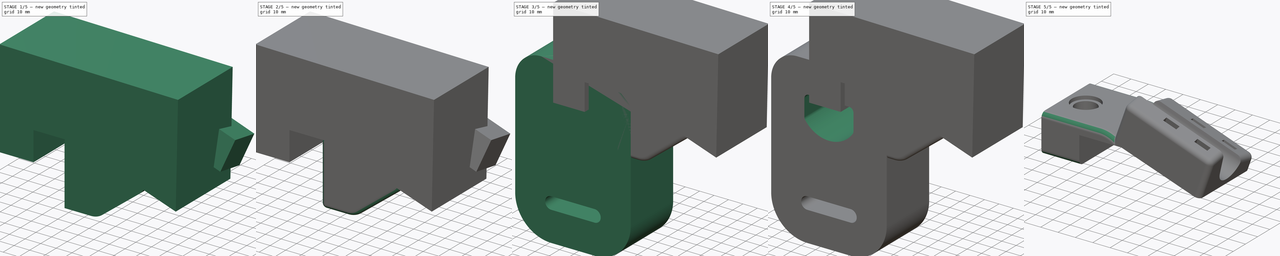
[diagram: build sequence overview — one tinted view per stage of 5, left to right]
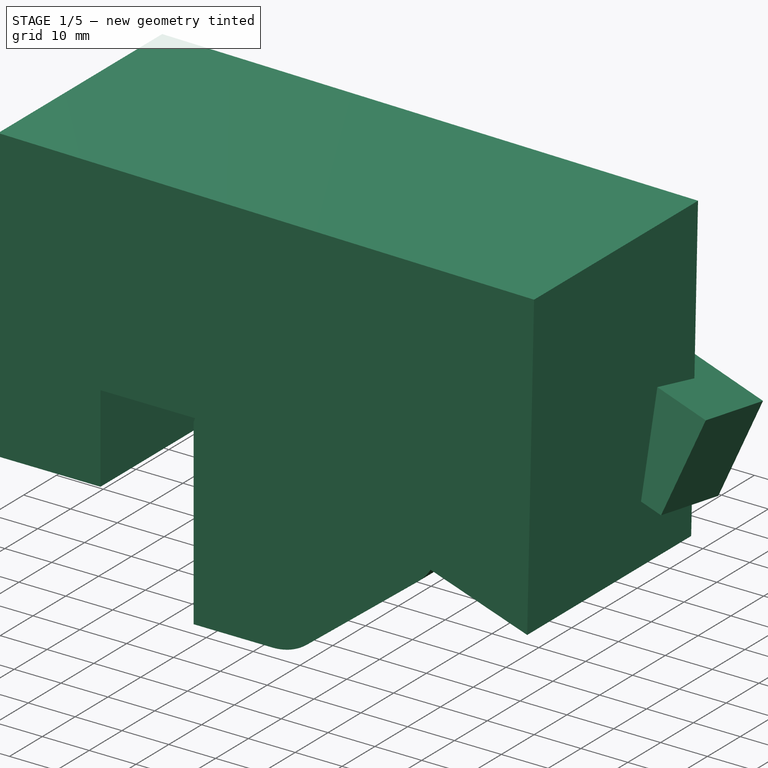
[diagram: stage 1 of 5 — iso view after this stage's code; geometry added in this stage tinted green]
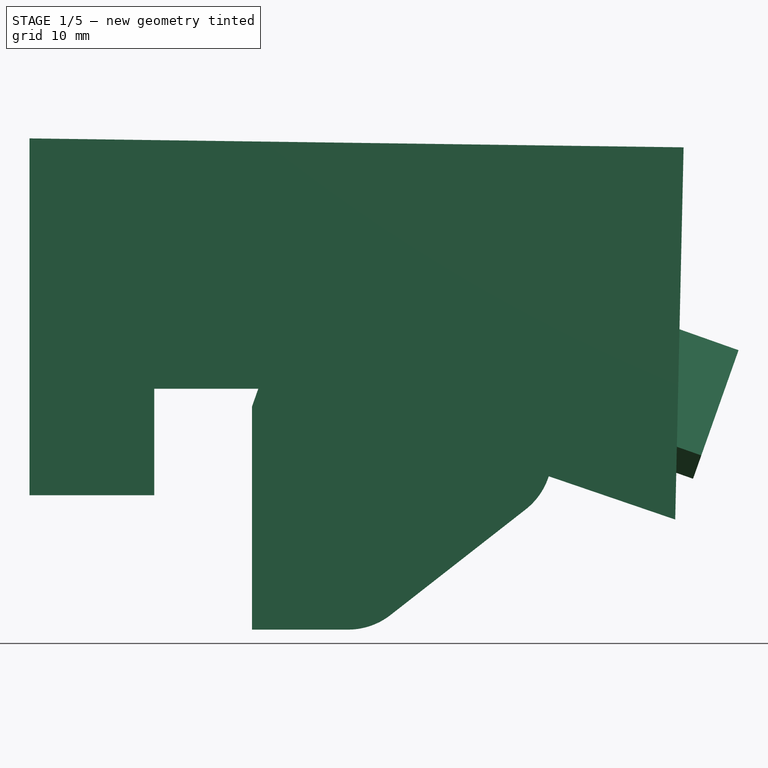
[diagram: stage 1 of 5 — front view after this stage's code; geometry added in this stage tinted green]
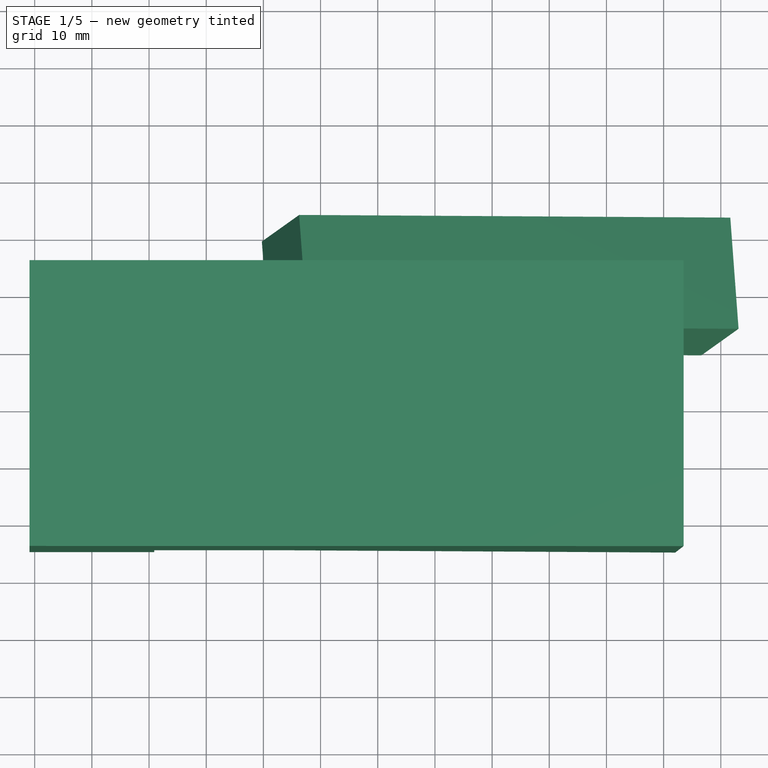
[diagram: stage 1 of 5 — top view after this stage's code; geometry added in this stage tinted green]
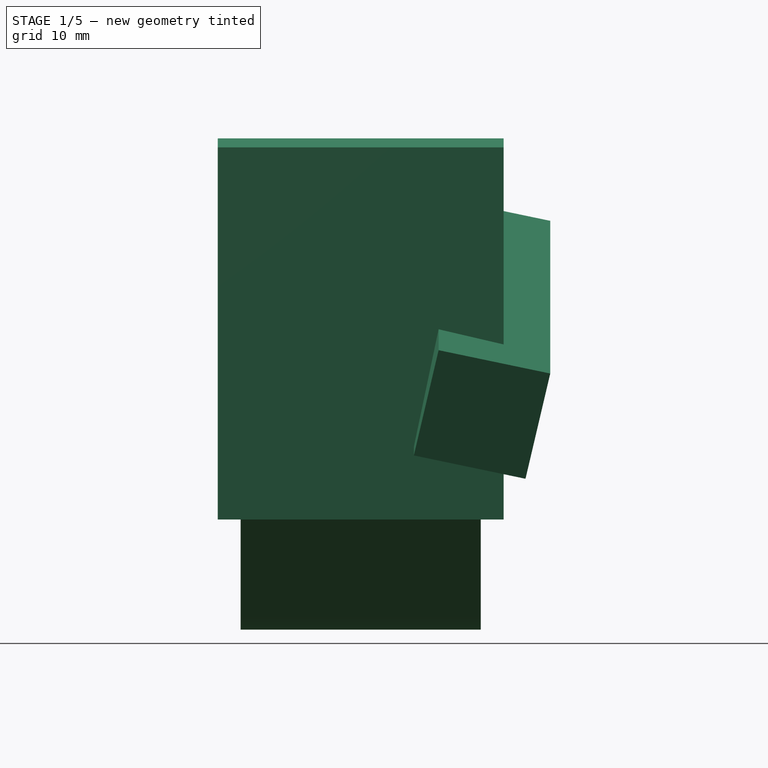
[diagram: stage 1 of 5 — right view after this stage's code; geometry added in this stage tinted green]
FCSTD DOCUMENT  (FreeCAD 0.21R30193 (Git))
Label: Siggi_mount
License: All rights reserved
LicenseURL: http://en.wikipedia.org/wiki/All_rights_reserved
objects: Sketcher::SketchObject×10, PartDesign::Pocket×5, PartDesign::Pad×4, PartDesign::Body×3, PartDesign::Mirrored×2, PartDesign::Fillet×2, Part::Box×2, Part::MultiFuse×2, PartDesign::Groove×1, PartDesign::PolarPattern×1, PartDesign::MultiTransform×1, App::Link×1, PartDesign::LinearPattern×1, Part::Cut×1, Part::MultiCommon×1
note: 48 computed .brp shape members not serialized (recipe doc carries the construction recipe); baked Part::Feature solids carry a one-line shape summary decoded from their .brp
EXTERNAL_REF file=../ello/beam_profile_V50mm.FCStd obj=Pad

FEATURE [Sketcher::SketchObject] Sketch006
  FullyConstrained = true
  MapMode = 5
  Placement = pos=(0,0,0) rot=(1,0,0;1.5708rad)
  Support = -> [XZ_Plane001]
  sketch-geometry (10):
    g0: LineSegment StartX=28 StartY=81 StartZ=0 EndX=38.2694 EndY=110 EndZ=0
    g1: LineSegment StartX=38.2694 StartY=110 StartZ=0 EndX=88.2294 EndY=92.3082 EndZ=0
    g2: LineSegment StartX=88.2294 StartY=92.3082 StartZ=0 EndX=79.7858 EndY=68.4642 EndZ=0
    g3: LineSegment StartX=75.862 StartY=63.0137 StartZ=0 EndX=52.2217 EndY=44.5439 EndZ=0
    g4: LineSegment StartX=44.8338 StartY=42 StartZ=0 EndX=28 EndY=42 EndZ=0
    g5: LineSegment StartX=28 StartY=42 StartZ=0 EndX=28 EndY=81 EndZ=0
    g6: ArcOfCircle CenterX=68.4741 CenterY=72.4698 CenterZ=0 NormalX=0 NormalY=0 NormalZ=1 AngleXU=0 Radius=12 StartAngle=5.37561 EndAngle=5.94285
    g7: GeomPoint X=78.6183 Y=65.1671 Z=0
    g8: ArcOfCircle CenterX=44.8338 CenterY=54 CenterZ=0 NormalX=0 NormalY=0 NormalZ=1 AngleXU=0 Radius=12 StartAngle=4.71239 EndAngle=5.37561
    g9: GeomPoint X=48.9657 Y=42 Z=0
  constraints (26):
    c: Coincident(g0,g1)
    c: Coincident(g1,g2)
    c: Horizontal(g4)
    c: Coincident(g4,g5)
    c: Vertical(g5)
    c: Coincident(g5,g0)
    c: DistanceY(g0) = 110
    c: Distance(g1) = 53
    c: Parallel(g0,g2)
    c: Perpendicular(g0,g1)
    c: Angle(g1,g-1) = 0.340339
    c: PointOnObject(g7,g2)
    c: PointOnObject(g7,g3)
    c: Tangent(g2,g6) = 1.5708
    c: Tangent(g3,g6) = 1.5708
    c: PointOnObject(g9,g3)
    c: PointOnObject(g9,g4)
    c: Tangent(g3,g8) = 1.5708
    c: Tangent(g4,g8) = 1.5708
    c: Equal(g6,g8)
    c: Radius(g8) = 12
    c: Angle(g3,g-2) = 0.907571
    c: DistanceX(g4) = 28
    c: DistanceY(g4) = 42
    c: Distance(g3) = 30
    c: DistanceY(g5,g5) = 39
FEATURE [PartDesign::Pad] Pad002  label="Side-shape"
  Direction = (0,-1,-2e-16)
  Length = 42
  Length2 = 10
  Midplane = true
  Placement = pos=(0,0,0) rot=(1,0,0;1.5708rad)
  Profile = -> Sketch006
  ReferenceAxis = -> Sketch006 [N_Axis]
  Type = 0
FEATURE [Sketcher::SketchObject] Sketch007
  AttachmentOffset = pos=(0,0,24) rot=(1,0,0;0.340339rad)
  FullyConstrained = false
  MapMode = 5
  Placement = pos=(24,-5.3e-15,5.3e-15) rot=(0.632523,0.632523,0.447023;2.30084rad)
  Support = -> [YZ_Plane001]
  sketch-geometry (9):
    g0: LineSegment StartX=-18.5528 StartY=128.306 StartZ=0 EndX=-13.4441 EndY=83.4682 EndZ=0
    g1: LineSegment StartX=13.4441 StartY=83.4682 StartZ=0 EndX=18.5528 EndY=128.306 EndZ=0
    g2: LineSegment StartX=18.5528 StartY=128.306 StartZ=0 EndX=16.0528 EndY=128.306 EndZ=0
    g3: LineSegment StartX=16.0528 StartY=128.306 StartZ=0 EndX=11.4261 EndY=87.6982 EndZ=0
    g4: LineSegment StartX=-11.4261 StartY=87.6982 StartZ=0 EndX=-16.0528 EndY=128.306 EndZ=0
    g5: LineSegment StartX=-16.0528 StartY=128.306 StartZ=0 EndX=-18.5528 EndY=128.306 EndZ=0
    g6: ArcOfCircle CenterX=-5.72e-14 CenterY=89 CenterZ=0 NormalX=0 NormalY=0 NormalZ=1 AngleXU=0 Radius=11.5 StartAngle=3.25504 EndAngle=6.16974
    g7: ArcOfCircle CenterX=0 CenterY=85 CenterZ=0 NormalX=0 NormalY=0 NormalZ=1 AngleXU=0 Radius=13.5311 StartAngle=3.25504 EndAngle=6.16974
    g8: LineSegment StartX=12.1778 StartY=94.296 StartZ=0 EndX=9.19709 EndY=94.6356 EndZ=0
  constraints (23):
    c: Coincident(g1,g2)
    c: Coincident(g2,g3)
    c: Coincident(g4,g5)
    c: Coincident(g5,g0)
    c: Horizontal(g5)
    c: Symmetric(g0,g1,g-2)
    c: Horizontal(g2)
    c: Equal(g2,g5)
    c: DistanceX(g5,g5) = 2.5
    c: DistanceY(g7,g6) = 4
    c: Tangent(g6,g4) = 1.5708
    c: Tangent(g6,g3) = 1.5708
    c: Tangent(g7,g1) = -1.5708
    c: Tangent(g7,g0) = -1.5708
    c: DistanceY(g7) = 85
    c: Parallel(g3,g1)
    c: Parallel(g4,g0)
    c: Radius(g6) = 11.5
    c: Angle(g3,g4) = 0.226893
    c: PointOnObject(g7,g-2)
    c: PointOnObject(g8,g3)
    c: Perpendicular(g3,g8)
    c: Distance(g8) = 3
FEATURE [Part::Box] Box001  label="side-protrusion"
  AttacherType = Attacher::AttachEngine3D
  Height = 20
  Length = 80
  Placement = pos=(31.1758,9.29767,99.1698) rot=(-0.535193,0.839709,0.091963;0.403691rad)
  Width = 20
FEATURE [Sketcher::SketchObject] Sketch008
  AttachmentOffset = pos=(0,0,0) rot=(1,0,0;0.340339rad)
  FullyConstrained = true
  MapMode = 5
  Placement = pos=(0,0,0) rot=(0.632523,0.632523,0.447023;2.30084rad)
  Support = -> [YZ_Plane001]
  sketch-geometry (6):
    g0: LineSegment StartX=0 StartY=119 StartZ=0 EndX=-25 EndY=112.301 EndZ=0
    g1: LineSegment StartX=-25 StartY=112.301 StartZ=0 EndX=-25 EndY=149.301 EndZ=0
    g2: LineSegment StartX=-25 StartY=149.301 StartZ=0 EndX=25 EndY=149.301 EndZ=0
    g3: LineSegment StartX=25 StartY=149.301 StartZ=0 EndX=25 EndY=99.3013 EndZ=0
    g4: LineSegment StartX=25 StartY=99.3013 StartZ=0 EndX=0 EndY=106 EndZ=0
    g5: LineSegment StartX=0 StartY=106 StartZ=0 EndX=0 EndY=119 EndZ=0
  constraints (17):
    c: Coincident(g0,g1)
    c: Vertical(g1)
    c: Coincident(g1,g2)
    c: Coincident(g2,g3)
    c: Vertical(g3)
    c: Coincident(g3,g4)
    c: Coincident(g4,g5)
    c: Coincident(g5,g0)
    c: Vertical(g5)
    c: Angle(g4,g2) = 0.261799
    c: Angle(g2,g0) = 0.261799
    c: Symmetric(g1,g2,g-2)
    c: DistanceX(g2,g2) = 50
    c: PointOnObject(g4,g-2)
    c: DistanceY(g5,g5) = 13
    c: Equal(g2,g3)
    c: DistanceY(g4) = 106
FEATURE [PartDesign::Pocket] Pocket004  label="Roof"
  BaseFeature = -> Pad002
  Direction = (-0.942641,3e-16,0.333807)
  Length = 5
  Length2 = 5
  Midplane = true
  Placement = pos=(0,0,0) rot=(1,0,0;1.5708rad)
  Profile = -> Sketch008
  ReferenceAxis = -> Sketch008 [N_Axis]
  Type = 1
FEATURE [Sketcher::SketchObject] Sketch009
  FullyConstrained = false
  MapMode = 5
  Placement = pos=(0,0,0) rot=(1,0,0;1.5708rad)
  Support = -> [XZ_Plane002]
  sketch-geometry (7):
    g0: LineSegment StartX=-10.9198 StartY=127.912 StartZ=0 EndX=-10.9198 EndY=65.4889 EndZ=0
    g1: LineSegment StartX=-10.9198 StartY=65.4889 StartZ=0 EndX=10.9198 EndY=65.4889 EndZ=0
    g2: LineSegment StartX=10.9198 StartY=65.4889 StartZ=0 EndX=10.9198 EndY=84.1237 EndZ=0
    g3: LineSegment StartX=10.9198 StartY=84.1237 StartZ=0 EndX=35.1702 EndY=84.1237 EndZ=0
    g4: LineSegment StartX=35.1702 StartY=84.1237 StartZ=0 EndX=102.025 EndY=61.2523 EndZ=0
    g5: LineSegment StartX=102.025 StartY=61.2523 StartZ=0 EndX=103.491 EndY=126.348 EndZ=0
    g6: LineSegment StartX=-10.9198 StartY=127.912 StartZ=0 EndX=103.491 EndY=126.348 EndZ=0
  constraints (11):
    c: Vertical(g0)
    c: Coincident(g0,g1)
    c: Coincident(g1,g2)
    c: Vertical(g2)
    c: Coincident(g2,g3)
    c: Horizontal(g3)
    c: Coincident(g3,g4)
    c: Coincident(g4,g5)
    c: Coincident(g6,g0)
    c: Coincident(g6,g5)
    c: Symmetric(g0,g1,g-2)
FEATURE [PartDesign::Pad] Pad003
  Direction = (0,-1,2e-16)
  Length = 50
  Length2 = 10
  Midplane = true
  Placement = pos=(0,0,0) rot=(1,0,0;1.5708rad)
  Profile = -> Sketch009
  ReferenceAxis = -> Sketch009 [N_Axis]
  Type = 0
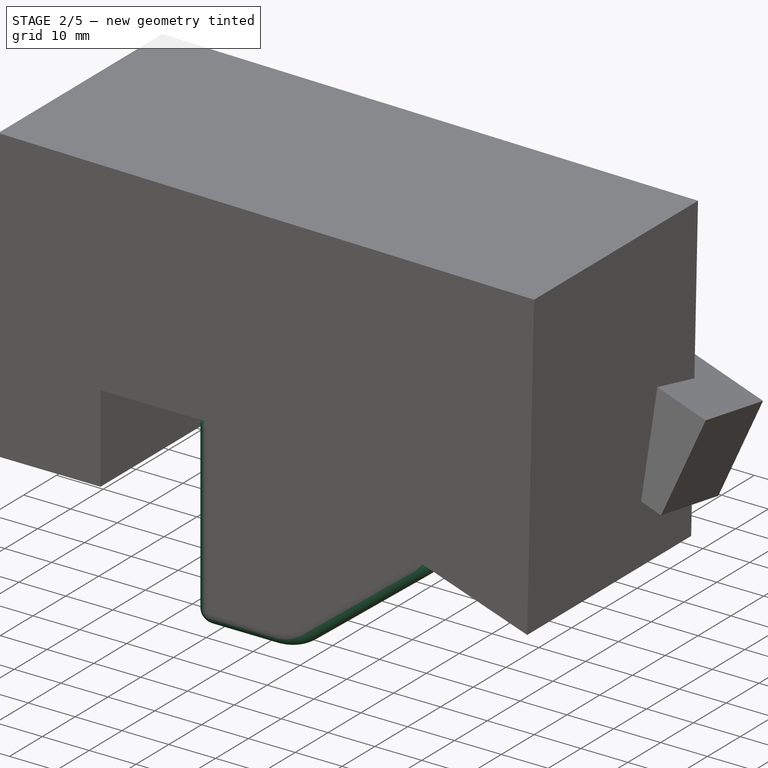
[diagram: stage 2 of 5 — iso view after this stage's code; geometry added in this stage tinted green]
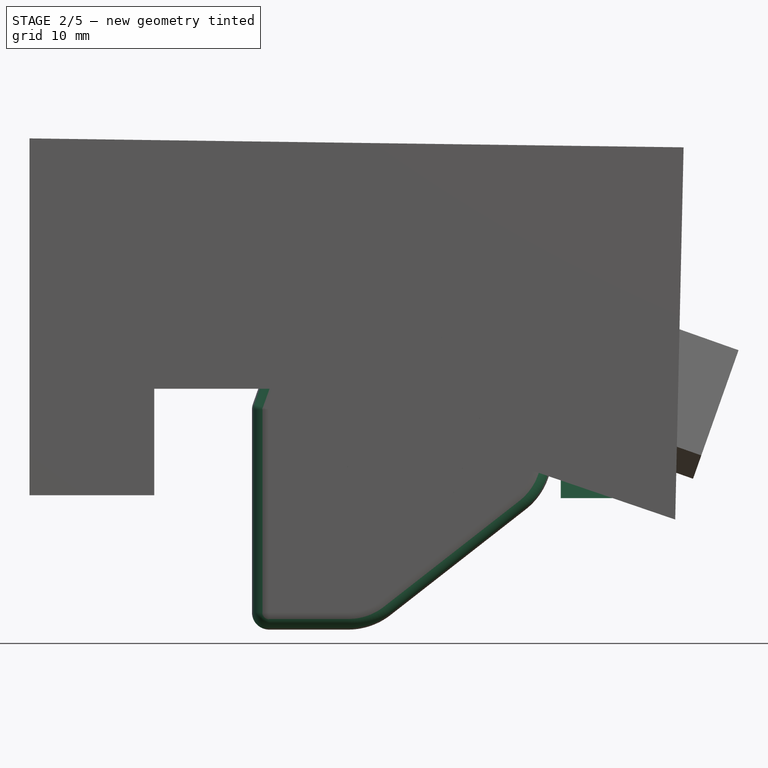
[diagram: stage 2 of 5 — front view after this stage's code; geometry added in this stage tinted green]
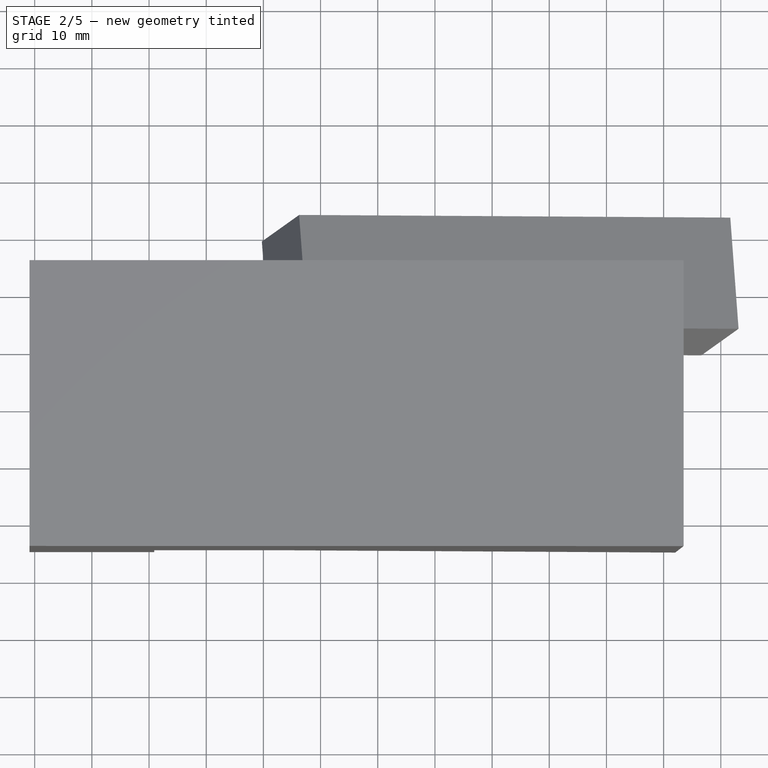
[diagram: stage 2 of 5 — top view after this stage's code; geometry added in this stage tinted green]
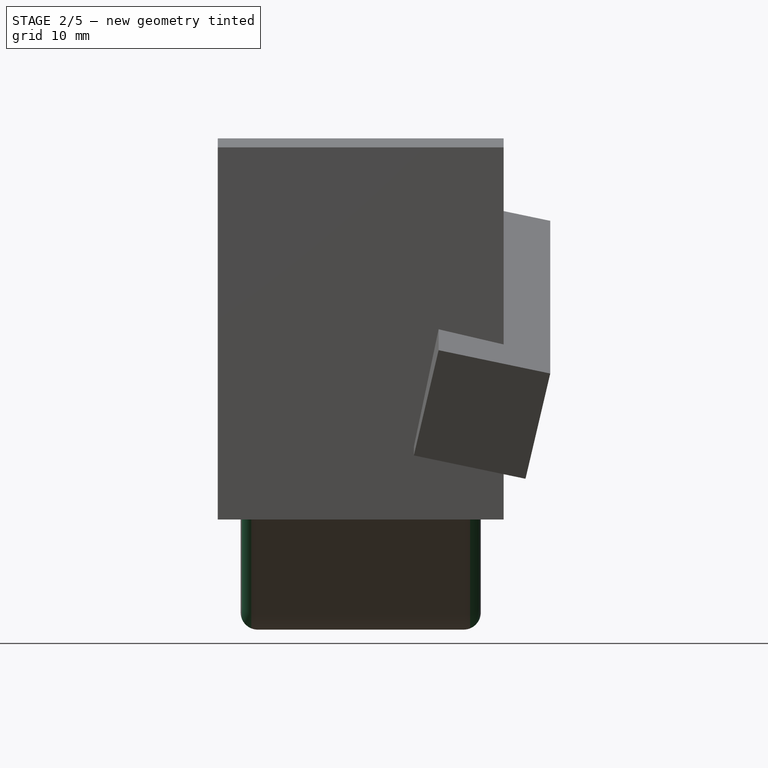
[diagram: stage 2 of 5 — right view after this stage's code; geometry added in this stage tinted green]
FEATURE [PartDesign::Body] Body  label="Block"
  Group = -> [Sketch,Pad,Sketch001,Sketch002,Groove,Pocket001,PolarPattern,Sketch003,Pocket002,MultiTransform,Mirrored,Mirrored001,Sketch004,Pocket003,Sketch005,Pad001,Fillet]
  Origin = -> Origin
  Tip = -> Fillet
FEATURE [App::Link] Link  label="Beam-Profile"
  LinkPlacement = pos=(30,0,90) rot=(0.166953,0.166953,0.971727;1.59947rad)
  LinkTransform = true
  LinkedObject = -> <external ../ello/beam_profile_V50mm.FCStd>#Pad
  Placement = pos=(30,0,90) rot=(0.166953,0.166953,0.971727;1.59947rad)
FEATURE [Part::Box] Box  label="bottom-weld"
  AttacherType = Attacher::AttachEngine3D
  Height = 10
  Length = 10
  Placement = pos=(82,5,75) rot=(1,0,0;3.14159rad)
  Width = 10
FEATURE [PartDesign::Fillet] Fillet001
  Base = -> Pocket004
  BaseFeature = -> Pocket004
  Placement = pos=(0,0,0) rot=(1,0,0;1.5708rad)
  Radius = 3
  SupportTransform = false
  UseAllEdges = true
FEATURE [PartDesign::Pocket] Pocket  label="Zip-tie-pocket"
  BaseFeature = -> Fillet001
  Direction = (-0.942641,3e-16,0.333807)
  Length = 8
  Length2 = 5
  Midplane = true
  Placement = pos=(0,0,0) rot=(1,0,0;1.5708rad)
  Profile = -> Sketch007
  ReferenceAxis = -> Sketch007 [N_Axis]
  Type = 0
FEATURE [PartDesign::LinearPattern] LinearPattern
  BaseFeature = -> Pocket
  Direction = -> Sketch007 [N_Axis]
  Length = 19
  Occurrences = 2
  Originals = -> [Pocket]
  Placement = pos=(0,0,0) rot=(1,0,0;1.5708rad)
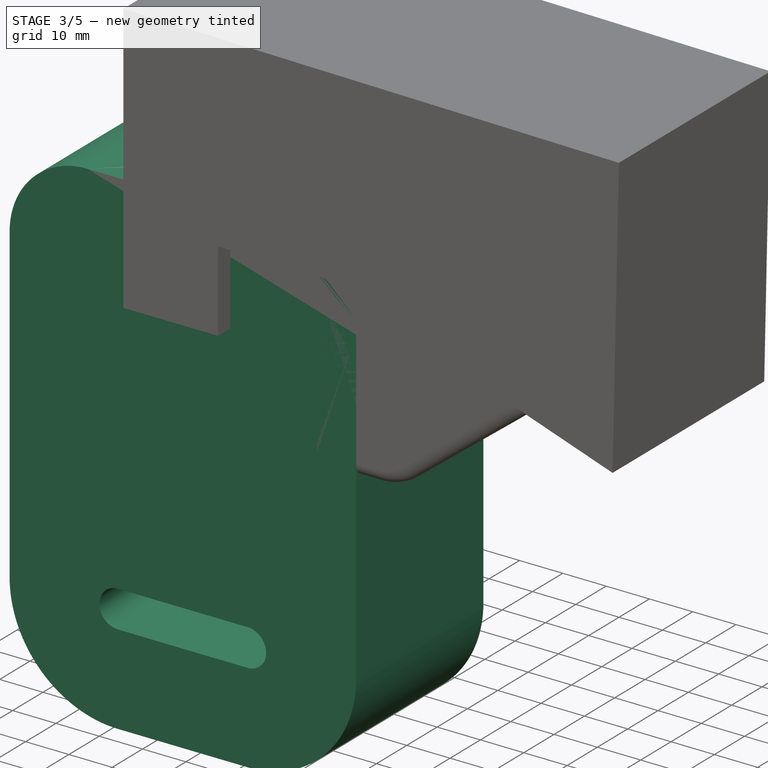
[diagram: stage 3 of 5 — iso view after this stage's code; geometry added in this stage tinted green]
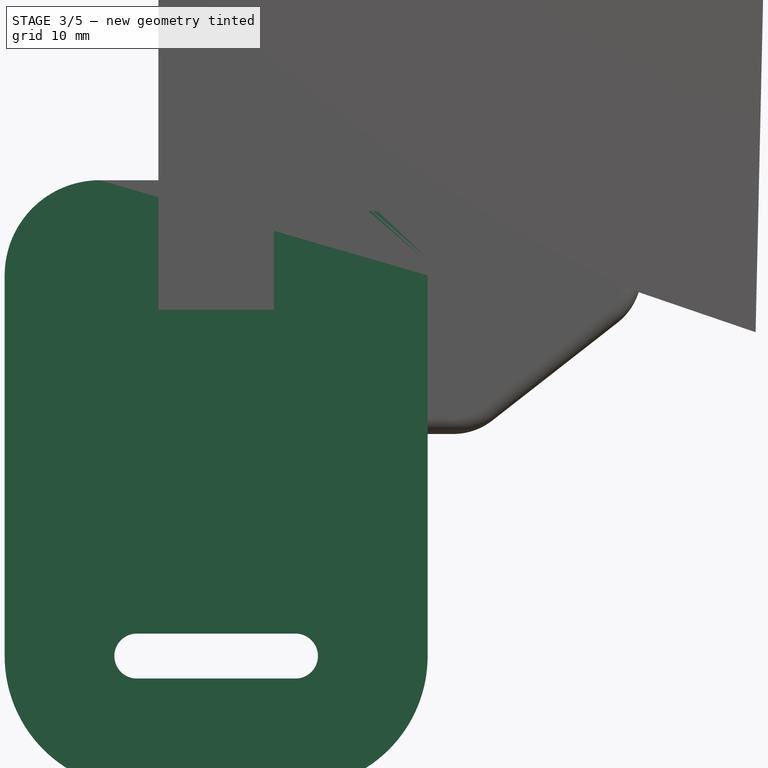
[diagram: stage 3 of 5 — front view after this stage's code; geometry added in this stage tinted green]
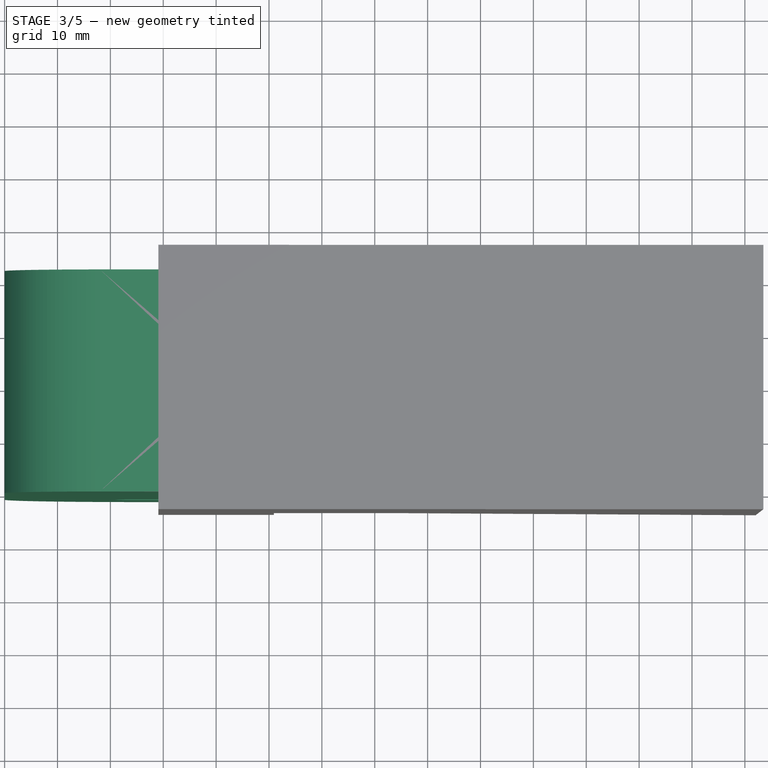
[diagram: stage 3 of 5 — top view after this stage's code; geometry added in this stage tinted green]
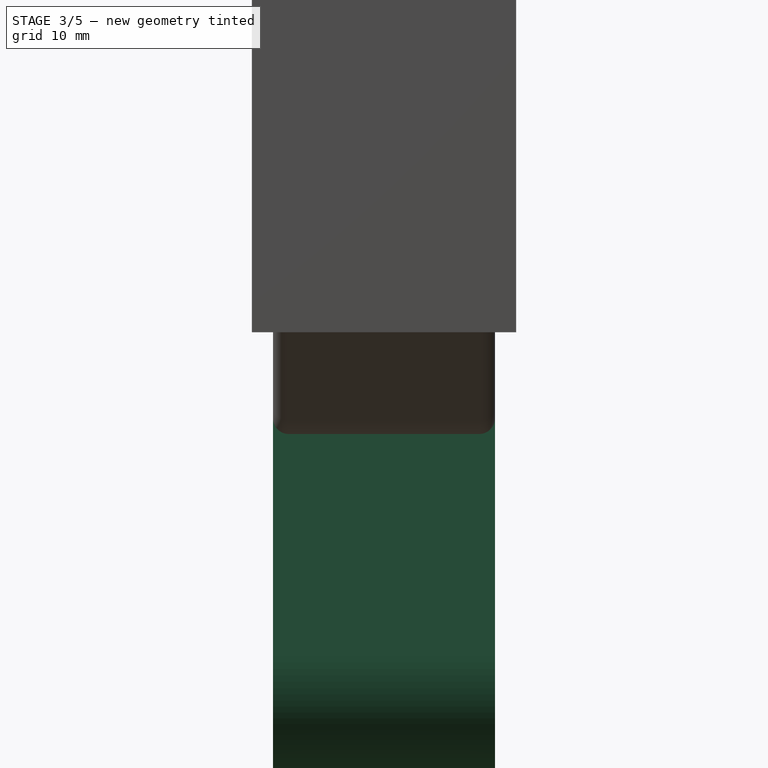
[diagram: stage 3 of 5 — right view after this stage's code; geometry added in this stage tinted green]
FEATURE [Sketcher::SketchObject] Sketch  label="shape"
  FullyConstrained = true
  MapMode = 5
  Placement = pos=(0,0,0) rot=(1,0,0;1.5708rad)
  Support = -> [XZ_Plane]
  expr: Constraints[31] = 2 + 9 + 12 + 2
  sketch-geometry (23):
    g0: ArcOfCircle CenterX=-15 CenterY=0 CenterZ=0 NormalX=0 NormalY=0 NormalZ=1 AngleXU=0 Radius=4.25 StartAngle=1.5708 EndAngle=4.71239
    g1: ArcOfCircle CenterX=15 CenterY=0 CenterZ=0 NormalX=0 NormalY=0 NormalZ=1 AngleXU=0 Radius=4.25 StartAngle=4.71239 EndAngle=7.85398
    g2: LineSegment StartX=-15 StartY=-4.25 StartZ=0 EndX=15 EndY=-4.25 EndZ=0
    g3: LineSegment StartX=15 StartY=4.25 StartZ=0 EndX=-15 EndY=4.25 EndZ=0
    g4: LineSegment StartX=-14 StartY=68 StartZ=0 EndX=14 EndY=68 EndZ=0
    g5: LineSegment StartX=17 StartY=65 StartZ=0 EndX=17 EndY=53.3563 EndZ=0
    g6: LineSegment StartX=-17 StartY=53.3563 StartZ=0 EndX=-17 EndY=65 EndZ=0
    g7: ArcOfCircle CenterX=-14 CenterY=53.3563 CenterZ=0 NormalX=0 NormalY=0 NormalZ=1 AngleXU=0 Radius=3 StartAngle=3.14159 EndAngle=3.74478
    g8: ArcOfCircle CenterX=0 CenterY=63 CenterZ=0 NormalX=0 NormalY=0 NormalZ=1 AngleXU=0 Radius=20 StartAngle=3.74478 EndAngle=5.67999
    g9: ArcOfCircle CenterX=14 CenterY=53.3563 CenterZ=0 NormalX=0 NormalY=0 NormalZ=1 AngleXU=0 Radius=3 StartAngle=5.67999 EndAngle=6.28319
    g10: ArcOfCircle CenterX=14 CenterY=65 CenterZ=0 NormalX=0 NormalY=0 NormalZ=1 AngleXU=0 Radius=3 StartAngle=4e-16 EndAngle=1.5708
    g11: GeomPoint X=17 Y=68 Z=0
    g12: ArcOfCircle CenterX=-14 CenterY=65 CenterZ=0 NormalX=0 NormalY=0 NormalZ=1 AngleXU=0 Radius=3 StartAngle=1.5708 EndAngle=3.14159
    g13: GeomPoint X=-17 Y=68 Z=0
    g14: GeomPoint X=0 Y=43 Z=0
    g15: LineSegment StartX=-22 StartY=90 StartZ=0 EndX=22 EndY=90 EndZ=0
    g16: ArcOfCircle CenterX=-22 CenterY=72 CenterZ=0 NormalX=0 NormalY=0 NormalZ=1 AngleXU=0 Radius=18 StartAngle=1.5708 EndAngle=3.14159
    g17: ArcOfCircle CenterX=22 CenterY=72 CenterZ=0 NormalX=0 NormalY=0 NormalZ=1 AngleXU=0 Radius=18 StartAngle=0 EndAngle=1.5708
    g18: ArcOfCircle CenterX=-15 CenterY=0 CenterZ=0 NormalX=0 NormalY=0 NormalZ=1 AngleXU=0 Radius=25 StartAngle=3.14159 EndAngle=4.71239
    g19: ArcOfCircle CenterX=15 CenterY=0 CenterZ=0 NormalX=0 NormalY=0 NormalZ=1 AngleXU=0 Radius=25 StartAngle=4.71239 EndAngle=6.28319
    g20: LineSegment StartX=-15 StartY=-25 StartZ=0 EndX=15 EndY=-25 EndZ=0
    g21: LineSegment StartX=-40 StartY=3.1e-15 StartZ=0 EndX=-40 EndY=72 EndZ=0
    g22: LineSegment StartX=40 StartY=72 StartZ=0 EndX=40 EndY=0 EndZ=0
  constraints (52):
    c: Tangent(g0,g2) = -1.5708
    c: Tangent(g2,g1) = -1.5708
    c: Tangent(g1,g3) = -1.5708
    c: Tangent(g3,g0) = -1.5708
    c: Equal(g0,g1)
    c: PointOnObject(g0,g-1)
    c: Diameter(g1) = 8.5
    c: DistanceX(g2,g2) = 30
    c: Vertical(g5)
    c: Vertical(g6)
    c: Symmetric(g13,g11,g-2)
    c: PointOnObject(g8,g-2)
    c: PointOnObject(g11,g4)
    c: PointOnObject(g11,g5)
    c: Tangent(g4,g10) = 1.5708
    c: Tangent(g5,g10) = 1.5708
    c: PointOnObject(g13,g4)
    c: PointOnObject(g13,g6)
    c: Tangent(g4,g12) = 1.5708
    c: Tangent(g6,g12) = 1.5708
    c: Equal(g10,g9)
    c: Equal(g9,g7)
    c: Equal(g7,g12)
    c: Radius(g10) = 3
    c: Tangent(g9,g5) = 1.5708
    c: Tangent(g7,g6) = 1.5708
    c: Tangent(g8,g7) = -1.5708
    c: Tangent(g9,g8) = -1.5708
    c: DistanceX(g13,g11) = 34
    c: PointOnObject(g14,g8)
    c: PointOnObject(g14,g-2)
    c: DistanceY(g14,g11) = 25
    c: Radius(g8) = 20
    c: Horizontal(g15)
    c: Tangent(g17,g15) = 1.5708
    c: Tangent(g16,g15) = 1.5708
    c: Symmetric(g16,g17,g-2)
    c: DistanceY(g4,g15) = 22
    c: Coincident(g18,g0)
    c: Coincident(g19,g1)
    c: Equal(g19,g18)
    c: Tangent(g20,g19) = -1.5708
    c: Tangent(g20,g18) = -1.5708
    c: Vertical(g21)
    c: Tangent(g22,g19) = 1.5708
    c: Tangent(g22,g17) = 1.5708
    c: Tangent(g21,g16) = 1.5708
    c: Tangent(g21,g18) = 1.5708
    c: Radius(g17) = 18
    c: Symmetric(g0,g1,g-2)
    c: DistanceX(g16,g17) = 80
    c: DistanceY(g15) = 90  'mount_h'
FEATURE [PartDesign::Pad] Pad  label="OutsideShape"
  Direction = (0,-1,-2e-16)
  Length = 42
  Length2 = 10
  Midplane = true
  Placement = pos=(0,0,0) rot=(1,0,0;1.5708rad)
  Profile = -> Sketch
  ReferenceAxis = -> Sketch [N_Axis]
  Type = 0
FEATURE [Sketcher::SketchObject] Sketch001
  ExternalGeometry = -> [Pad]
  FullyConstrained = true
  MapMode = 5
  Placement = pos=(0,0,0) rot=(1,0,0;1.5708rad)
  Support = -> [XZ_Plane]
  sketch-geometry (6):
    g0: LineSegment StartX=-8 StartY=98 StartZ=0 EndX=-8 EndY=88 EndZ=0
    g1: LineSegment StartX=-8 StartY=88 StartZ=0 EndX=-6.1 EndY=88 EndZ=0
    g2: LineSegment StartX=-6.1 StartY=88 StartZ=0 EndX=-6.1 EndY=58 EndZ=0
    g3: LineSegment StartX=-6.1 StartY=58 StartZ=0 EndX=0 EndY=58 EndZ=0
    g4: LineSegment StartX=0 StartY=58 StartZ=0 EndX=0 EndY=98 EndZ=0
    g5: LineSegment StartX=0 StartY=98 StartZ=0 EndX=-8 EndY=98 EndZ=0
  constraints (18):
    c: Coincident(g0,g1)
    c: Coincident(g1,g2)
    c: Vertical(g2)
    c: Coincident(g2,g3)
    c: PointOnObject(g3,g-2)
    c: Coincident(g3,g4)
    c: PointOnObject(g4,g-2)
    c: Coincident(g4,g5)
    c: Coincident(g5,g0)
    c: Horizontal(g5)
    c: Vertical(g0)
    c: Horizontal(g1)
    c: Horizontal(g3)
    c: DistanceY(g2,g2) = 30
    c: DistanceY(g0,g0) = 10
    c: DistanceX(g5,g5) = 8
    c: DistanceX(g3,g3) = 6.1
    c: DistanceY(g0,g-3) = 2
FEATURE [Sketcher::SketchObject] Sketch002
  FullyConstrained = true
  MapMode = 5
  Placement = pos=(0,0,0) rot=(1,0,0;1.5708rad)
  Support = -> [XZ_Plane]
  expr: Constraints[9] = Sketch.Constraints.mount_h - 0.5mm
  sketch-geometry (4):
    g0: LineSegment StartX=9 StartY=89.5 StartZ=0 EndX=10.2 EndY=89.5 EndZ=0
    g1: LineSegment StartX=10.2 StartY=89.5 StartZ=0 EndX=10.2 EndY=68.5 EndZ=0
    g2: LineSegment StartX=10.2 StartY=68.5 StartZ=0 EndX=9 EndY=68.5 EndZ=0
    g3: LineSegment StartX=9 StartY=68.5 StartZ=0 EndX=9 EndY=89.5 EndZ=0
  constraints (12):
    c: Coincident(g0,g1)
    c: Coincident(g1,g2)
    c: Coincident(g2,g3)
    c: Coincident(g3,g0)
    c: Horizontal(g0)
    c: Horizontal(g2)
    c: Vertical(g1)
    c: Vertical(g3)
    c: DistanceX(g0,g0) = 1.2
    c: DistanceY(g0) = 89.5
    c: DistanceY(g1,g1) = 21
    c: DistanceX(g2) = 9
FEATURE [Sketcher::SketchObject] Sketch003
  FullyConstrained = true
  MapMode = 5
  Placement = pos=(0,0,0) rot=(1,0,0;1.5708rad)
  Support = -> [XZ_Plane]
  sketch-geometry (22):
    g0: Circle CenterX=-23 CenterY=14.691 CenterZ=0 NormalX=0 NormalY=0 NormalZ=1 AngleXU=0 Radius=0.5
    g1: Circle CenterX=-16.4286 CenterY=14.691 CenterZ=0 NormalX=0 NormalY=0 NormalZ=1 AngleXU=0 Radius=0.5
    g2: Circle CenterX=-13.1429 CenterY=9 CenterZ=0 NormalX=0 NormalY=0 NormalZ=1 AngleXU=0 Radius=0.5
    g3: Circle CenterX=-9.85714 CenterY=14.691 CenterZ=0 NormalX=0 NormalY=0 NormalZ=1 AngleXU=0 Radius=0.5
    g4: Circle CenterX=-6.57143 CenterY=9 CenterZ=0 NormalX=0 NormalY=0 NormalZ=1 AngleXU=0 Radius=0.5
    g5: Circle CenterX=-3.28571 CenterY=14.691 CenterZ=0 NormalX=0 NormalY=0 NormalZ=1 AngleXU=0 Radius=0.5
    g6: Circle CenterX=0 CenterY=9 CenterZ=0 NormalX=0 NormalY=0 NormalZ=1 AngleXU=0 Radius=0.5
    g7: Circle CenterX=-19.7143 CenterY=9 CenterZ=0 NormalX=0 NormalY=0 NormalZ=1 AngleXU=0 Radius=0.5
    g8: LineSegment StartX=-23 StartY=14.691 StartZ=0 EndX=-16.4286 EndY=14.691 EndZ=0
    g9: LineSegment StartX=0 StartY=9 StartZ=0 EndX=-6.57143 EndY=9 EndZ=0
    g10: LineSegment StartX=-6.57143 StartY=9 StartZ=0 EndX=-13.1429 EndY=9 EndZ=0
    g11: LineSegment StartX=-13.1429 StartY=9 StartZ=0 EndX=-19.7143 EndY=9 EndZ=0
    g12: LineSegment StartX=-16.4286 StartY=14.691 StartZ=0 EndX=-9.85714 EndY=14.691 EndZ=0
    g13: LineSegment StartX=-9.85714 StartY=14.691 StartZ=0 EndX=-3.28571 EndY=14.691 EndZ=0
    g14: LineSegment StartX=-3.28571 StartY=14.691 StartZ=0 EndX=-3.28571 EndY=9 EndZ=0
    g15: LineSegment StartX=-3.28571 StartY=14.691 StartZ=0 EndX=-6.57143 EndY=9 EndZ=0
    g16: LineSegment StartX=-19.7143 StartY=9 StartZ=0 EndX=-26.2857 EndY=9 EndZ=0
    g17: LineSegment StartX=-19.7143 StartY=9 StartZ=0 EndX=-23 EndY=3.30898 EndZ=0
    g18: LineSegment StartX=-26.2857 StartY=9 StartZ=0 EndX=-29.5714 EndY=3.30898 EndZ=0
    g19: Circle CenterX=-26.2857 CenterY=9 CenterZ=0 NormalX=0 NormalY=0 NormalZ=1 AngleXU=0 Radius=0.5
    g20: Circle CenterX=-29.5714 CenterY=3.30898 CenterZ=0 NormalX=0 NormalY=0 NormalZ=1 AngleXU=0 Radius=0.5
    g21: Circle CenterX=-23 CenterY=3.30898 CenterZ=0 NormalX=0 NormalY=0 NormalZ=1 AngleXU=0 Radius=0.5
  constraints (55):
    c: Diameter(g0) = 1
    c: PointOnObject(g6,g-2)
    c: Coincident(g8,g0)
    c: Coincident(g8,g1)
    c: Coincident(g9,g6)
    c: Coincident(g9,g4)
    c: Coincident(g9,g10)
    c: Coincident(g10,g2)
    c: Coincident(g10,g11)
    c: Coincident(g11,g7)
    c: Equal(g0,g1)
    c: Equal(g1,g3)
    c: Equal(g3,g5)
    c: Equal(g5,g6)
    c: Equal(g6,g4)
    c: Equal(g4,g2)
    c: Equal(g2,g7)
    c: Coincident(g12,g1)
    c: Coincident(g12,g3)
    c: Coincident(g12,g13)
    c: Horizontal(g13)
    c: Coincident(g13,g14)
    c: PointOnObject(g14,g9)
    c: Vertical(g14)
    c: Horizontal(g10)
    c: Horizontal(g11)
    c: Horizontal(g8)
    c: Horizontal(g12)
    c: Coincident(g13,g5)
    c: Equal(g13,g12)
    c: Equal(g12,g8)
    c: Equal(g10,g11)
    c: Symmetric(g4,g6,g14)
    c: Equal(g9,g10)
    c: Equal(g9,g13)
    c: Coincident(g15,g5)
    c: Coincident(g15,g4)
    c: Equal(g9,g15)
    c: Coincident(g16,g7)
    c: Horizontal(g16)
    c: Coincident(g17,g7)
    c: Coincident(g18,g16)
    c: Equal(g17,g11)
    c: Equal(g11,g16)
    c: Equal(g16,g18)
    c: Parallel(g17,g18)
    c: Parallel(g18,g15)
    c: Coincident(g19,g16)
    c: Coincident(g20,g18)
    c: Coincident(g21,g17)
    c: Equal(g7,g19)
    c: Equal(g19,g20)
    c: Equal(g20,g21)
    c: DistanceY(g6) = 9
    c: DistanceX(g21) = -23
FEATURE [PartDesign::Mirrored] Mirrored
  MirrorPlane = -> Sketch003 [V_Axis]
  Placement = pos=(0,0,0) rot=(1,0,0;1.5708rad)
FEATURE [PartDesign::Mirrored] Mirrored001
  MirrorPlane = -> Sketch003 [H_Axis]
  Placement = pos=(0,0,0) rot=(1,0,0;1.5708rad)
FEATURE [Sketcher::SketchObject] Sketch004
  AttachmentOffset = pos=(0,0,-17) rot=(0,0,1;0rad)
  FullyConstrained = true
  MapMode = 5
  Placement = pos=(0,17,3.8e-15) rot=(1,0,0;1.5708rad)
  Support = -> [XZ_Plane]
  expr: .Constraints.mount_h = Sketch.Constraints[51]
  expr: Constraints[23] = Sketch.Constraints[23]
  expr: Constraints[28] = Sketch.Constraints[28]
  expr: Constraints[31] = Sketch.Constraints[31]
  expr: Constraints[32] = Sketch.Constraints[32]
  expr: Constraints[37] = Sketch.Constraints[37]
  expr: Constraints[48] = Sketch.Constraints[48]
  expr: Constraints[50] = Sketch.Constraints[50]
  expr: Constraints[6] = Sketch.Constraints[6]
  expr: Constraints[7] = Sketch.Constraints[7]
  sketch-geometry (23):
    g0: ArcOfCircle CenterX=-15 CenterY=0 CenterZ=0 NormalX=0 NormalY=0 NormalZ=1 AngleXU=0 Radius=4.25 StartAngle=1.5708 EndAngle=4.71239
    g1: ArcOfCircle CenterX=15 CenterY=0 CenterZ=0 NormalX=0 NormalY=0 NormalZ=1 AngleXU=0 Radius=4.25 StartAngle=4.71239 EndAngle=7.85398
    g2: LineSegment StartX=-15 StartY=-4.25 StartZ=0 EndX=15 EndY=-4.25 EndZ=0
    g3: LineSegment StartX=15 StartY=4.25 StartZ=0 EndX=-15 EndY=4.25 EndZ=0
    g4: LineSegment StartX=-14 StartY=68 StartZ=0 EndX=14 EndY=68 EndZ=0
    g5: LineSegment StartX=17 StartY=65 StartZ=0 EndX=17 EndY=53.3563 EndZ=0
    g6: LineSegment StartX=-17 StartY=53.3563 StartZ=0 EndX=-17 EndY=65 EndZ=0
    g7: ArcOfCircle CenterX=-14 CenterY=53.3563 CenterZ=0 NormalX=0 NormalY=0 NormalZ=1 AngleXU=0 Radius=3 StartAngle=3.14159 EndAngle=3.74478
    g8: ArcOfCircle CenterX=0 CenterY=63 CenterZ=0 NormalX=0 NormalY=0 NormalZ=1 AngleXU=0 Radius=20 StartAngle=3.74478 EndAngle=5.67999
    g9: ArcOfCircle CenterX=14 CenterY=53.3563 CenterZ=0 NormalX=0 NormalY=0 NormalZ=1 AngleXU=0 Radius=3 StartAngle=5.67999 EndAngle=6.28319
    g10: ArcOfCircle CenterX=14 CenterY=65 CenterZ=0 NormalX=0 NormalY=0 NormalZ=1 AngleXU=0 Radius=3 StartAngle=-1.8e-15 EndAngle=1.5708
    g11: GeomPoint X=17 Y=68 Z=0
    g12: ArcOfCircle CenterX=-14 CenterY=65 CenterZ=0 NormalX=0 NormalY=0 NormalZ=1 AngleXU=0 Radius=3 StartAngle=1.5708 EndAngle=3.14159
    g13: GeomPoint X=-17 Y=68 Z=0
    g14: GeomPoint X=0 Y=43 Z=0
    g15: LineSegment StartX=-22 StartY=90 StartZ=0 EndX=22 EndY=90 EndZ=0
    g16: ArcOfCircle CenterX=-22 CenterY=72 CenterZ=0 NormalX=0 NormalY=0 NormalZ=1 AngleXU=0 Radius=18 StartAngle=1.5708 EndAngle=3.14159
    g17: ArcOfCircle CenterX=22 CenterY=72 CenterZ=0 NormalX=0 NormalY=0 NormalZ=1 AngleXU=0 Radius=18 StartAngle=0 EndAngle=1.5708
    g18: ArcOfCircle CenterX=-15 CenterY=0 CenterZ=0 NormalX=0 NormalY=0 NormalZ=1 AngleXU=0 Radius=25 StartAngle=3.14159 EndAngle=4.71239
    g19: ArcOfCircle CenterX=15 CenterY=0 CenterZ=0 NormalX=0 NormalY=0 NormalZ=1 AngleXU=0 Radius=25 StartAngle=4.71239 EndAngle=6.28319
    g20: LineSegment StartX=-15 StartY=-25 StartZ=0 EndX=15 EndY=-25 EndZ=0
    g21: LineSegment StartX=-40 StartY=3.1e-15 StartZ=0 EndX=-40 EndY=72 EndZ=0
    g22: LineSegment StartX=40 StartY=72 StartZ=0 EndX=40 EndY=0 EndZ=0
  constraints (52):
    c: Tangent(g0,g2) = -1.5708
    c: Tangent(g2,g1) = -1.5708
    c: Tangent(g1,g3) = -1.5708
    c: Tangent(g3,g0) = -1.5708
    c: Equal(g0,g1)
    c: PointOnObject(g0,g-1)
    c: Diameter(g1) = 8.5
    c: DistanceX(g2,g2) = 30
    c: Vertical(g5)
    c: Vertical(g6)
    c: Symmetric(g13,g11,g-2)
    c: PointOnObject(g8,g-2)
    c: PointOnObject(g11,g4)
    c: PointOnObject(g11,g5)
    c: Tangent(g4,g10) = 1.5708
    c: Tangent(g5,g10) = 1.5708
    c: PointOnObject(g13,g4)
    c: PointOnObject(g13,g6)
    c: Tangent(g4,g12) = 1.5708
    c: Tangent(g6,g12) = 1.5708
    c: Equal(g10,g9)
    c: Equal(g9,g7)
    c: Equal(g7,g12)
    c: Radius(g10) = 3
    c: Tangent(g9,g5) = 1.5708
    c: Tangent(g7,g6) = 1.5708
    c: Tangent(g8,g7) = -1.5708
    c: Tangent(g9,g8) = -1.5708
    c: DistanceX(g13,g11) = 34
    c: PointOnObject(g14,g8)
    c: PointOnObject(g14,g-2)
    c: DistanceY(g14,g11) = 25
    c: Radius(g8) = 20
    c: Horizontal(g15)
    c: Tangent(g17,g15) = 1.5708
    c: Tangent(g16,g15) = 1.5708
    c: Symmetric(g16,g17,g-2)
    c: DistanceY(g4,g15) = 22
    c: Coincident(g18,g0)
    c: Coincident(g19,g1)
    c: Equal(g19,g18)
    c: Tangent(g20,g19) = -1.5708
    c: Tangent(g20,g18) = -1.5708
    c: Vertical(g21)
    c: Tangent(g22,g19) = 1.5708
    c: Tangent(g22,g17) = 1.5708
    c: Tangent(g21,g16) = 1.5708
    c: Tangent(g21,g18) = 1.5708
    c: Radius(g17) = 18
    c: Symmetric(g0,g1,g-2)
    c: DistanceX(g16,g17) = 80
    c: DistanceY(g15) = 90  'mount_h'
FEATURE [Sketcher::SketchObject] Sketch005
  AttachmentOffset = pos=(0,0,70) rot=(0,0,1;0rad)
  FullyConstrained = false
  MapMode = 5
  Placement = pos=(0,0,70) rot=(0,0,1;0rad)
  Support = -> [XY_Plane]
  expr: .AttachmentOffset.Base.z = Sketch.Constraints.mount_h - 20mm
  sketch-geometry (6):
    g0: ArcOfCircle CenterX=0 CenterY=0 CenterZ=0 NormalX=0 NormalY=0 NormalZ=1 AngleXU=0 Radius=17.2 StartAngle=0 EndAngle=3.14159
    g1: LineSegment StartX=-17.2 StartY=2.1e-15 StartZ=0 EndX=-18.2 EndY=0.155608 EndZ=0
    g2: LineSegment StartX=-18.2 StartY=0.155608 StartZ=0 EndX=-18.2 EndY=19 EndZ=0
    g3: LineSegment StartX=-18.2 StartY=19 StartZ=0 EndX=18.212 EndY=19 EndZ=0
    g4: LineSegment StartX=18.212 StartY=19 StartZ=0 EndX=18.212 EndY=0 EndZ=0
    g5: LineSegment StartX=18.212 StartY=0 StartZ=0 EndX=17.2 EndY=0 EndZ=0
  constraints (17):
    c: Coincident(g0,g-1)
    c: PointOnObject(g0,g-1)
    c: PointOnObject(g0,g-1)
    c: Radius(g0) = 17.2
    c: Coincident(g0,g1)
    c: Coincident(g1,g2)
    c: Vertical(g2)
    c: Coincident(g2,g3)
    c: Horizontal(g3)
    c: Coincident(g3,g4)
    c: PointOnObject(g4,g-1)
    c: Vertical(g4)
    c: Coincident(g4,g5)
    c: Coincident(g5,g0)
    c: Equal(g5,g1)
    c: DistanceX(g1,g1) = 1
    c: DistanceY(g4,g4) = 19
FEATURE [PartDesign::Groove] Groove
  Angle = 360
  Axis = (0,-2e-16,1)
  Base = (0,0,0)
  BaseFeature = -> Pad
  Placement = pos=(0,0,0) rot=(1,0,0;1.5708rad)
  Profile = -> Sketch001
  ReferenceAxis = -> Sketch001 [V_Axis]
  Reversed = true
FEATURE [PartDesign::Pocket] Pocket001  label="single-top-inside-stifener"
  BaseFeature = -> Groove
  Direction = (0,1,2e-16)
  Length = 0.2
  Length2 = 5
  Placement = pos=(0,0,0) rot=(1,0,0;1.5708rad)
  Profile = -> Sketch002
  ReferenceAxis = -> Sketch002 [N_Axis]
  Type = 0
FEATURE [Part::MultiFuse] Fusion  label="Beam_V50mm"
  Shapes = -> [Link,Box,Box001]
FEATURE [PartDesign::Body] Body001  label="Arm"
  Group = -> [Sketch006,Pad002,Sketch007,Sketch008,Pocket004,Fillet001,Pocket,LinearPattern]
  Origin = -> Origin001
  Tip = -> LinearPattern
FEATURE [Part::Cut] Cut
  Base = -> Body001
  Tool = -> Fusion
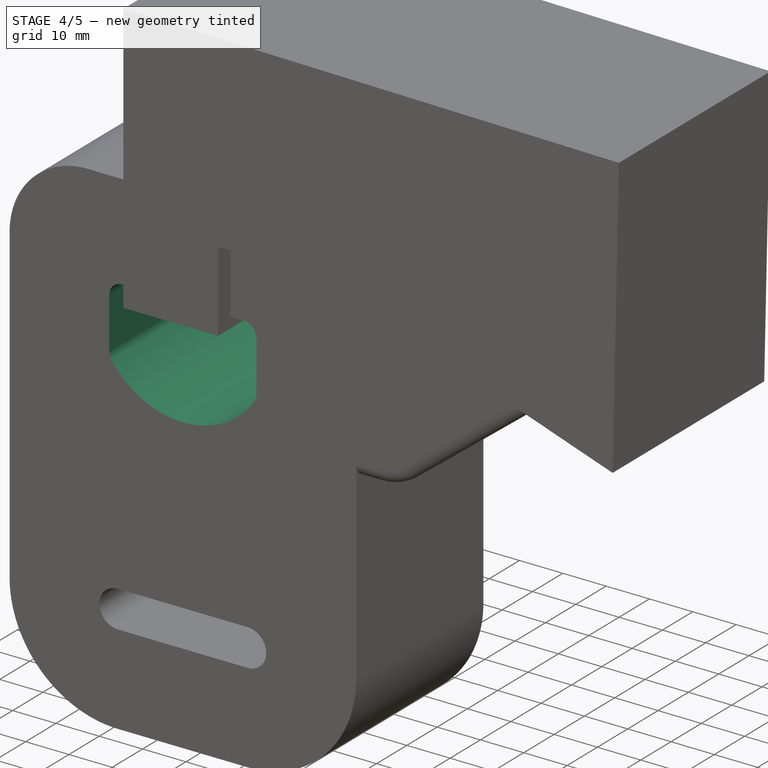
[diagram: stage 4 of 5 — iso view after this stage's code; geometry added in this stage tinted green]
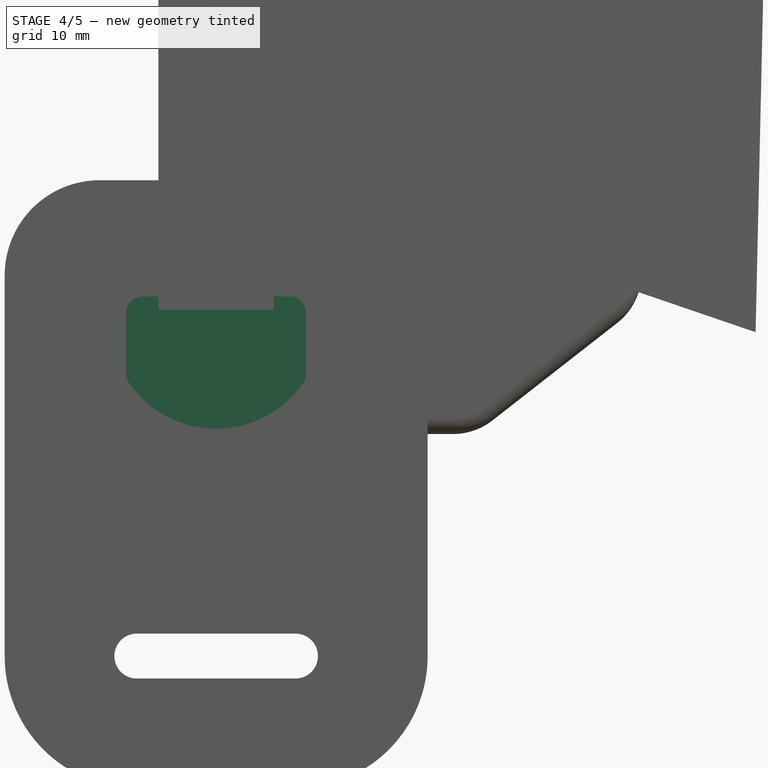
[diagram: stage 4 of 5 — front view after this stage's code; geometry added in this stage tinted green]
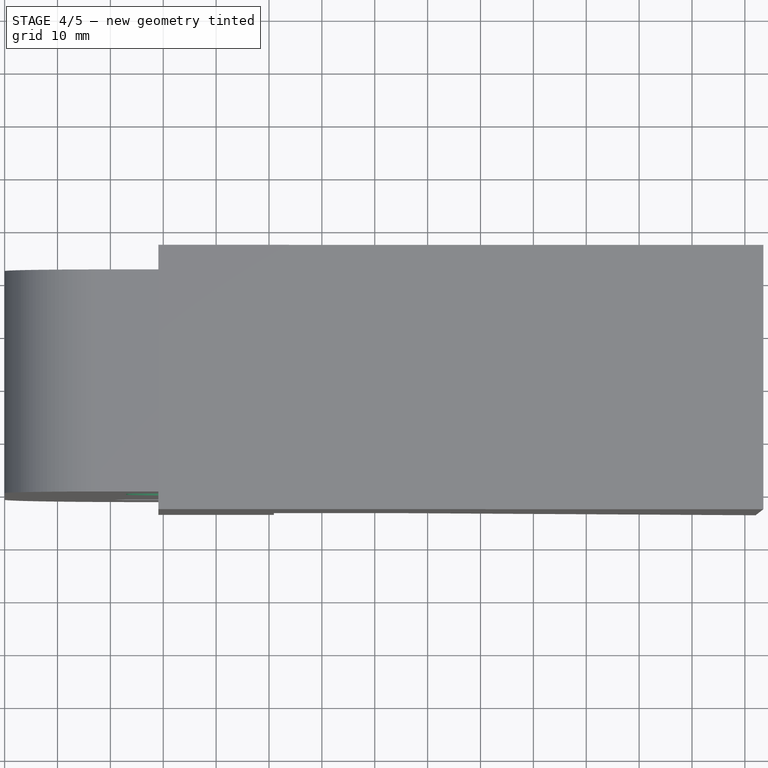
[diagram: stage 4 of 5 — top view after this stage's code; geometry added in this stage tinted green]
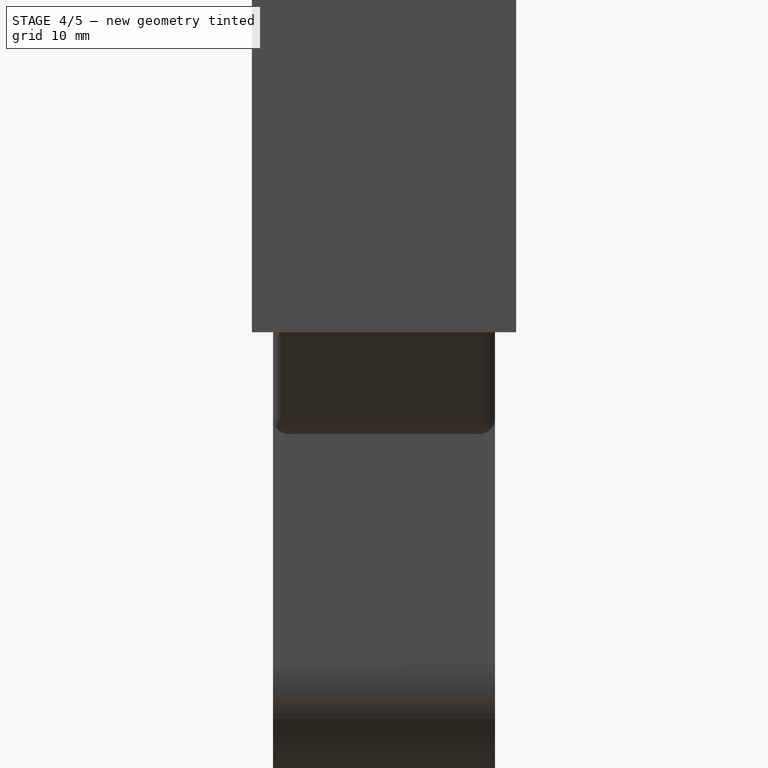
[diagram: stage 4 of 5 — right view after this stage's code; geometry added in this stage tinted green]
FEATURE [PartDesign::PolarPattern] PolarPattern  label="top-inside-stiffener"
  Angle = 360
  Axis = -> Z_Axis
  BaseFeature = -> Pocket001
  Occurrences = 32
  Originals = -> [Pocket001]
  Placement = pos=(0,0,0) rot=(1,0,0;1.5708rad)
FEATURE [PartDesign::Pocket] Pocket002  label="one-quadrant-bottom-inside-stiffener"
  BaseFeature = -> PolarPattern
  Direction = (0,1,2e-16)
  Length = 41
  Length2 = 5
  Midplane = true
  Placement = pos=(0,0,0) rot=(1,0,0;1.5708rad)
  Profile = -> Sketch003
  ReferenceAxis = -> Sketch003 [N_Axis]
  Reversed = true
  Type = 0
FEATURE [PartDesign::MultiTransform] MultiTransform  label="bottom-inside-stiffener"
  BaseFeature = -> Pocket002
  Originals = -> [Pocket002]
  Placement = pos=(0,0,0) rot=(1,0,0;1.5708rad)
  Transformations = -> [Mirrored,Mirrored001]
FEATURE [PartDesign::Pocket] Pocket003  label="top-screw-pocket"
  BaseFeature = -> MultiTransform
  Direction = (0,1,2e-16)
  Length = 5
  Length2 = 5
  Placement = pos=(0,0,0) rot=(1,0,0;1.5708rad)
  Profile = -> Sketch004
  ReferenceAxis = -> Sketch004 [N_Axis]
  Reversed = true
  Type = 1
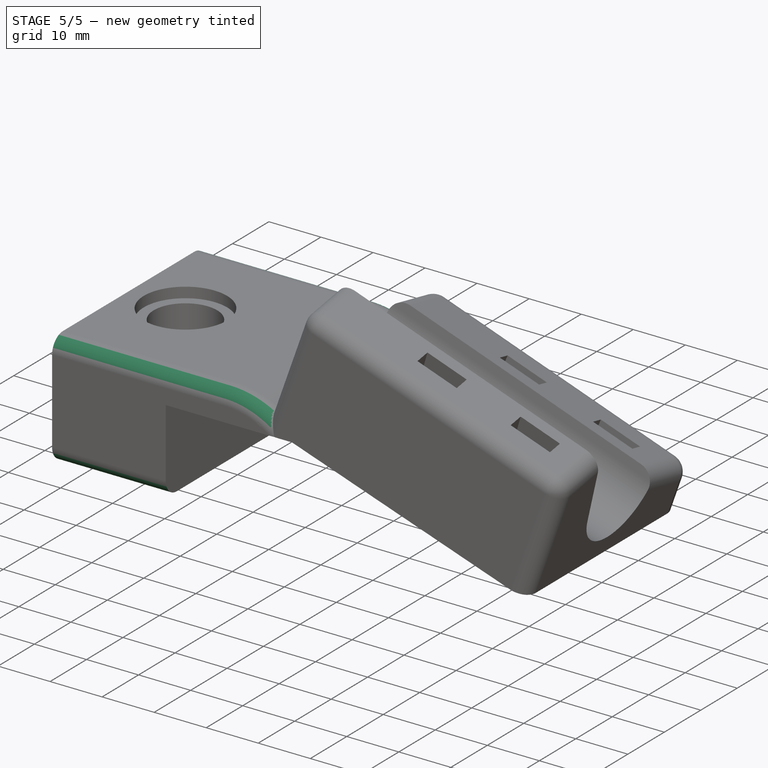
[diagram: stage 5 of 5 — iso view after this stage's code; geometry added in this stage tinted green]
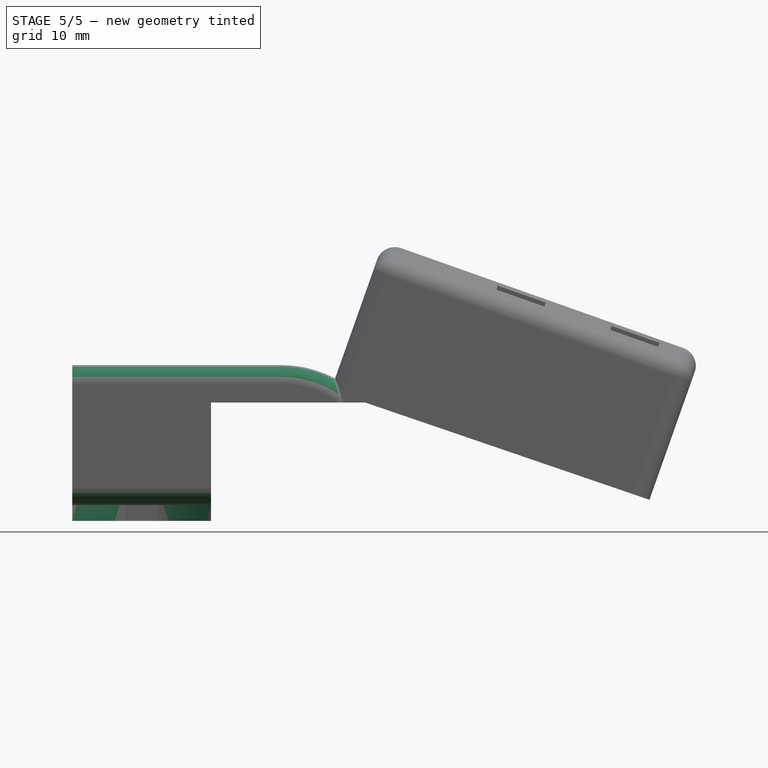
[diagram: stage 5 of 5 — front view after this stage's code; geometry added in this stage tinted green]
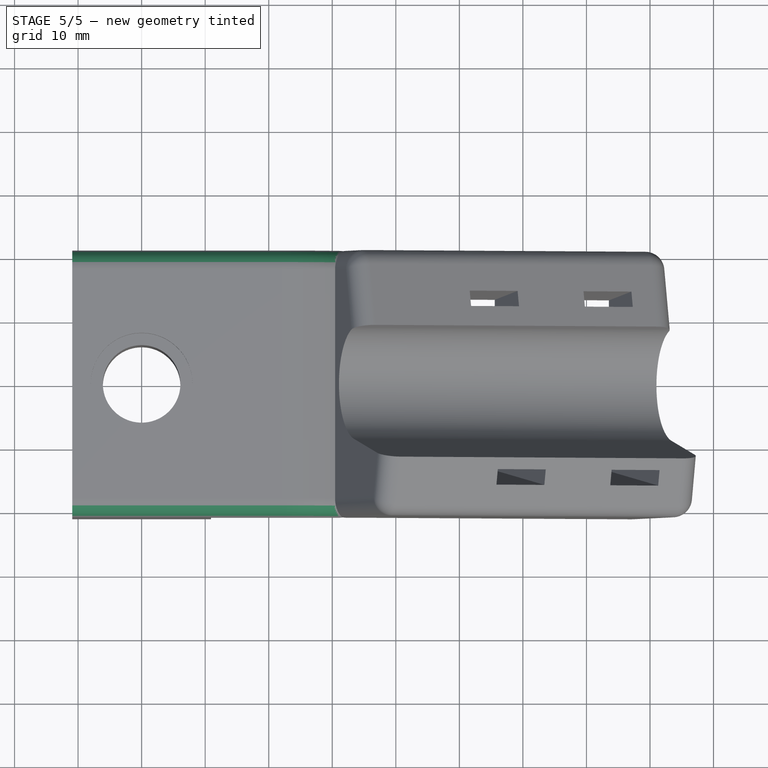
[diagram: stage 5 of 5 — top view after this stage's code; geometry added in this stage tinted green]
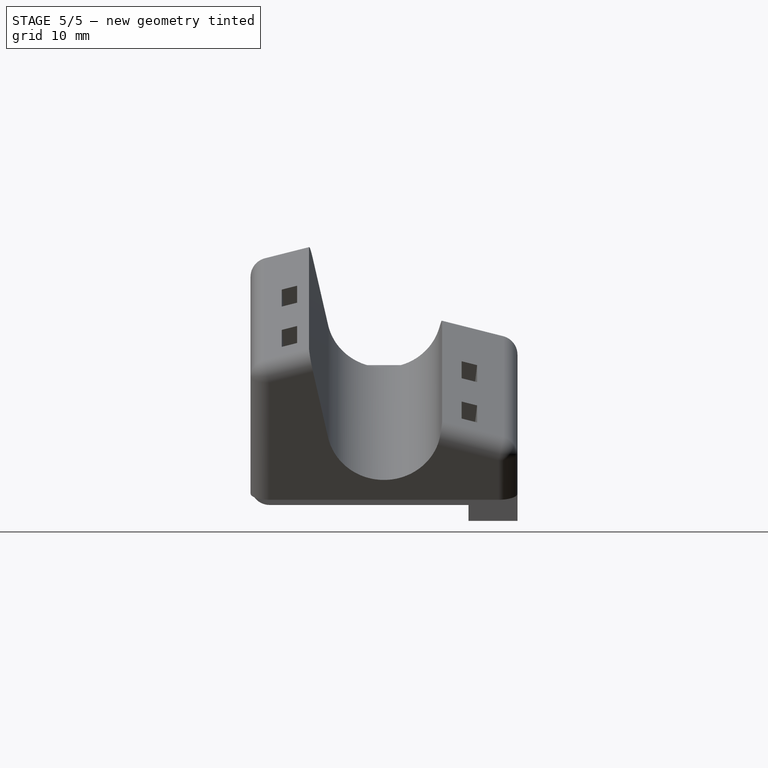
[diagram: stage 5 of 5 — right view after this stage's code; geometry added in this stage tinted green]
FEATURE [PartDesign::Pad] Pad001  label="top-screw-pocket-backdrop"
  BaseFeature = -> Pocket003
  Direction = (0,0,1)
  Length = 30
  Length2 = 10
  Placement = pos=(0,0,0) rot=(1,0,0;1.5708rad)
  Profile = -> Sketch005
  ReferenceAxis = -> Sketch005 [N_Axis]
  Reversed = true
  Type = 0
FEATURE [PartDesign::Fillet] Fillet
  Base = -> Pad001 [Edge10,Edge9,Edge29]
  BaseFeature = -> Pad001
  Placement = pos=(0,0,0) rot=(1,0,0;1.5708rad)
  Radius = 3
  SupportTransform = false
  UseAllEdges = false
FEATURE [Part::MultiFuse] Fusion001
  Shapes = -> [Cut,Body]
FEATURE [PartDesign::Body] Body002  label="TestCutter"
  Group = -> [Sketch009,Pad003]
  Origin = -> Origin002
  Tip = -> Pad003
FEATURE [Part::MultiCommon] Common
  Shapes = -> [Body002,Fusion001]
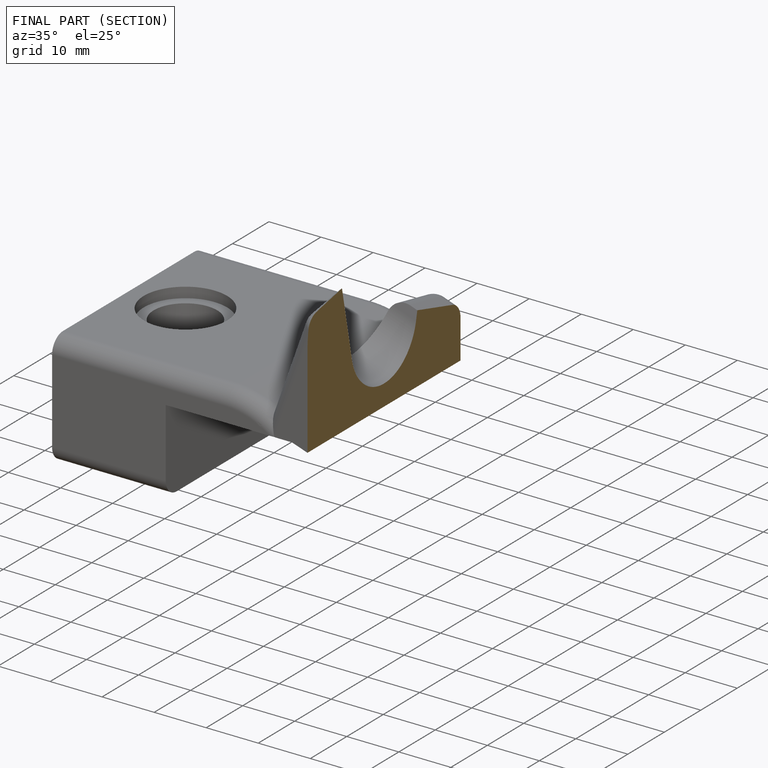
[diagram: finished part — half-section view (interior)]
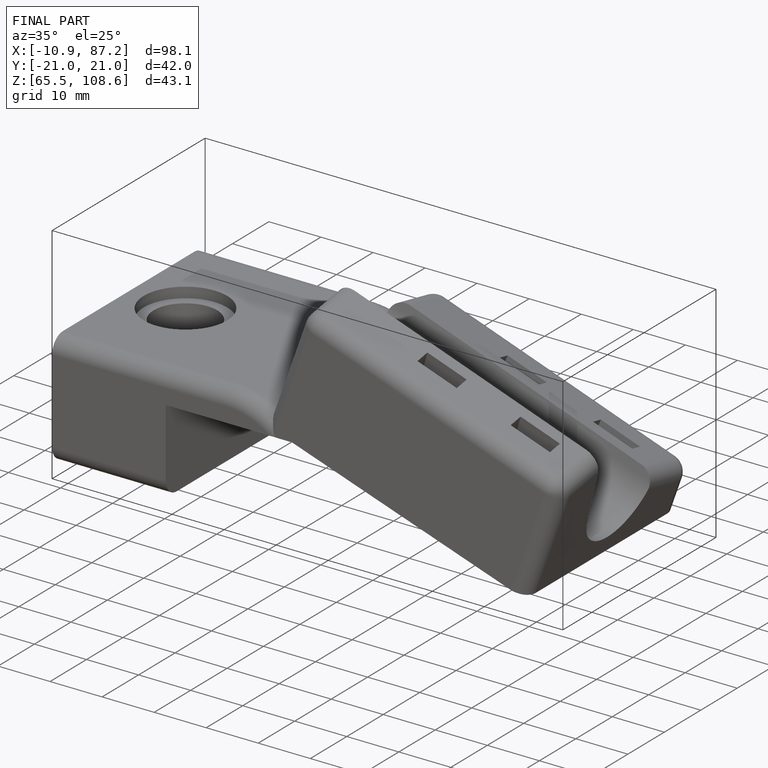
[diagram: finished part — iso view with bounding-box wireframe]
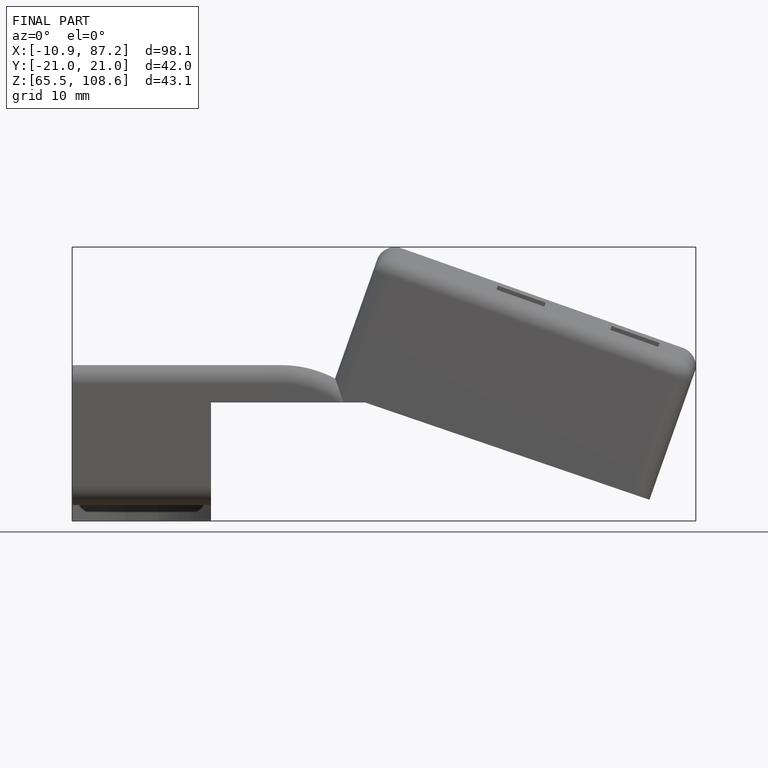
[diagram: finished part — front view with bounding-box wireframe]
